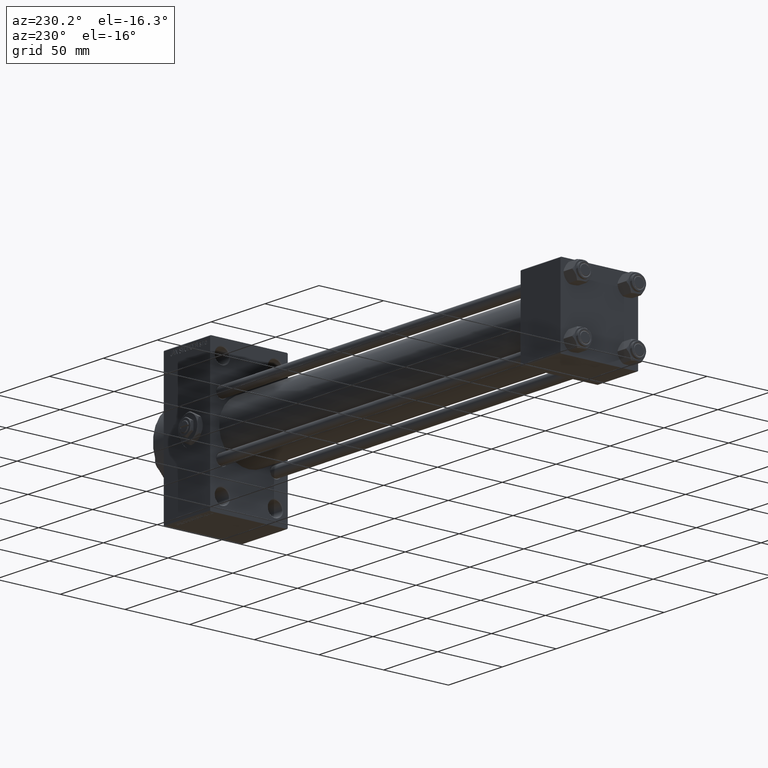
[diagram: clean part render]
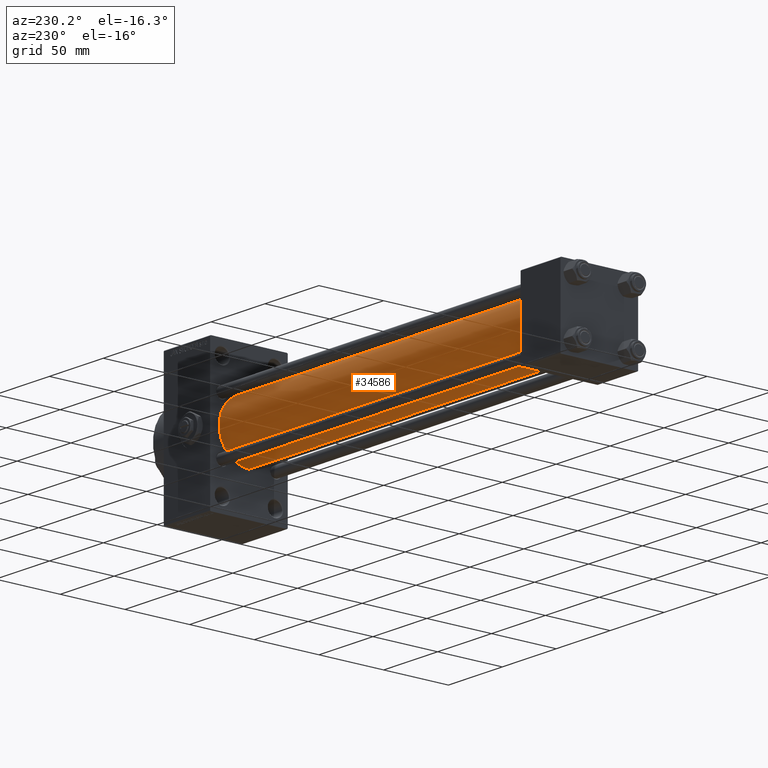
[diagram: same view with one face highlighted and labeled with its STEP entity id]
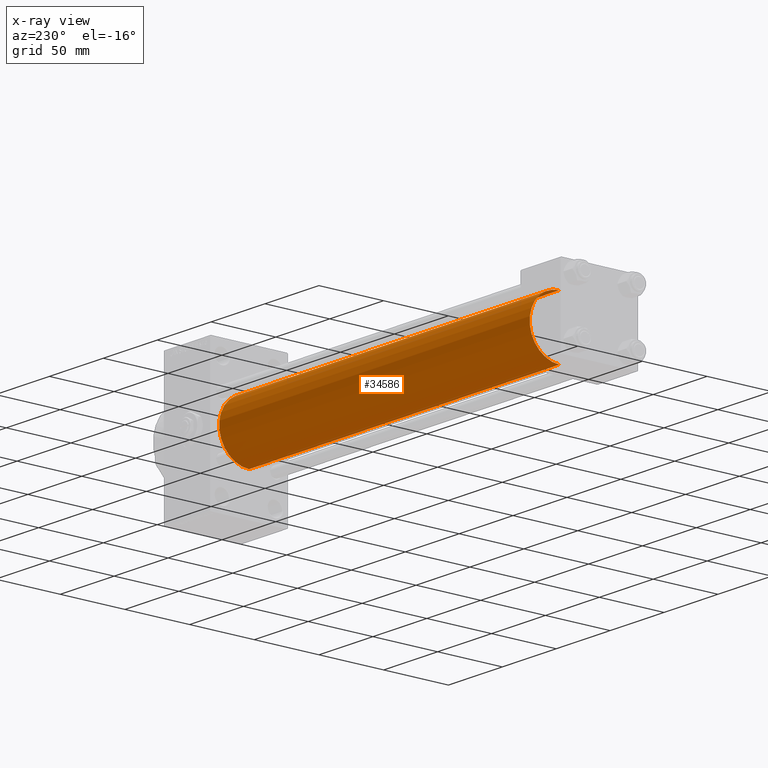
[diagram: x-ray of the same camera — body ghosted, the highlighted face saturated]
A machine part, auxiliary view. The second image highlights one B-rep face of the part: STEP entity #34586.
The next image is the same camera in x-ray: the body ghosted, the highlighted face saturated — about 0% of this face is hidden behind the body in this view.
In plain terms, the highlighted cylindrical surface (partial cylindrical patch) has radius 23 mm, axis along (-1, -0, -0).
Its self-contained STEP definition (entity closure, byte-faithful):
#430 = CARTESIAN_POINT ( 'NONE',  ( 36.99999999999997868, -2.602085213965210642E-15, 0.000000000000000000 ) ) ;
#3652 = CARTESIAN_POINT ( 'NONE',  ( 324.9999999999999432, 2.146024240737016609E-16, -23.00000000000000000 ) ) ;
#4104 = EDGE_CURVE ( 'NONE', #37001, #10331, #48277, .T. ) ;
#4455 = DIRECTION ( 'NONE',  ( 0.000000000000000000, 0.000000000000000000, -1.000000000000000000 ) ) ;
#4748 = CARTESIAN_POINT ( 'NONE',  ( 324.9999999999999432, -2.602085213965210642E-15, 23.00000000000000000 ) ) ;
#9271 = EDGE_CURVE ( 'NONE', #37001, #16005, #47053, .T. ) ;
#10331 = VERTEX_POINT ( 'NONE', #4748 ) ;
#10391 = EDGE_LOOP ( 'NONE', ( #23875, #44842, #31488, #22953 ) ) ;
#12110 = DIRECTION ( 'NONE',  ( 1.000000000000000000, -0.000000000000000000, 0.000000000000000000 ) ) ;
#14242 = AXIS2_PLACEMENT_3D ( 'NONE', #28118, #35820, #32817 ) ;
#16005 = VERTEX_POINT ( 'NONE', #46500 ) ;
#16955 = CYLINDRICAL_SURFACE ( 'NONE', #14242, 23.00000000000000000 ) ;
#19894 = DIRECTION ( 'NONE',  ( 1.000000000000000000, 0.000000000000000000, 0.000000000000000000 ) ) ;
#20674 = FACE_OUTER_BOUND ( 'NONE', #10391, .T. ) ;
#20847 = CARTESIAN_POINT ( 'NONE',  ( 324.9999999999999432, -2.602085213965210642E-15, 23.00000000000000000 ) ) ;
#22953 = ORIENTED_EDGE ( 'NONE', *, *, #32727, .F. ) ;
#23684 = AXIS2_PLACEMENT_3D ( 'NONE', #34306, #19894, #4455 ) ;
#23875 = ORIENTED_EDGE ( 'NONE', *, *, #4104, .F. ) ;
#24176 = CARTESIAN_POINT ( 'NONE',  ( 324.9999999999999432, 2.146024240737016609E-16, -23.00000000000000000 ) ) ;
#24469 = VERTEX_POINT ( 'NONE', #38776 ) ;
#25174 = AXIS2_PLACEMENT_3D ( 'NONE', #430, #12110, #37717 ) ;
#28118 = CARTESIAN_POINT ( 'NONE',  ( 324.9999999999999432, -2.602085213965210642E-15, 0.000000000000000000 ) ) ;
#28650 = DIRECTION ( 'NONE',  ( -1.000000000000000000, -0.000000000000000000, -0.000000000000000000 ) ) ;
#28782 = DIRECTION ( 'NONE',  ( -1.000000000000000000, -0.000000000000000000, -0.000000000000000000 ) ) ;
#30161 = EDGE_CURVE ( 'NONE', #16005, #24469, #33070, .T. ) ;
#31488 = ORIENTED_EDGE ( 'NONE', *, *, #30161, .T. ) ;
#32727 = EDGE_CURVE ( 'NONE', #10331, #24469, #44175, .T. ) ;
#32817 = DIRECTION ( 'NONE',  ( 0.000000000000000000, 0.000000000000000000, 1.000000000000000000 ) ) ;
#33070 = CIRCLE ( 'NONE', #25174, 23.00000000000000000 ) ;
#34306 = CARTESIAN_POINT ( 'NONE',  ( 324.9999999999999432, -2.602085213965210642E-15, 0.000000000000000000 ) ) ;
#34586 = ADVANCED_FACE ( 'NONE', ( #20674 ), #16955, .T. ) ;
#35820 = DIRECTION ( 'NONE',  ( -1.000000000000000000, -0.000000000000000000, -0.000000000000000000 ) ) ;
#37001 = VERTEX_POINT ( 'NONE', #3652 ) ;
#37717 = DIRECTION ( 'NONE',  ( 0.000000000000000000, 0.000000000000000000, 1.000000000000000000 ) ) ;
#38776 = CARTESIAN_POINT ( 'NONE',  ( 36.99999999999997868, -2.602085213965210642E-15, 23.00000000000000000 ) ) ;
#44175 = LINE ( 'NONE', #20847, #45902 ) ;
#44842 = ORIENTED_EDGE ( 'NONE', *, *, #9271, .T. ) ;
#45902 = VECTOR ( 'NONE', #28782, 1000.000000000000000 ) ;
#46500 = CARTESIAN_POINT ( 'NONE',  ( 36.99999999999997868, 2.146024240737016609E-16, -23.00000000000000000 ) ) ;
#47053 = LINE ( 'NONE', #24176, #48496 ) ;
#48277 = CIRCLE ( 'NONE', #23684, 23.00000000000000000 ) ;
#48496 = VECTOR ( 'NONE', #28650, 1000.000000000000000 ) ;